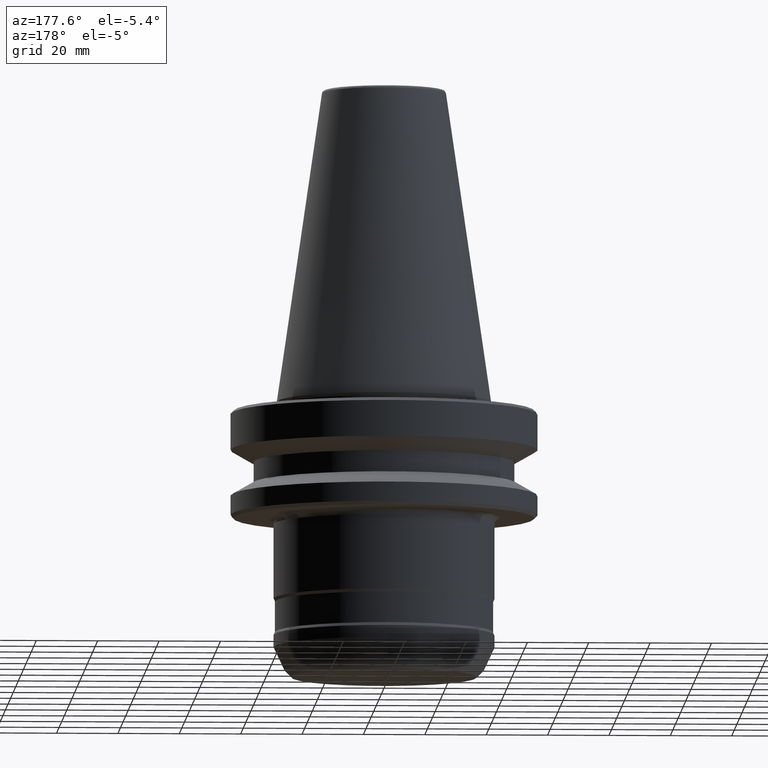
[diagram: clean part render]
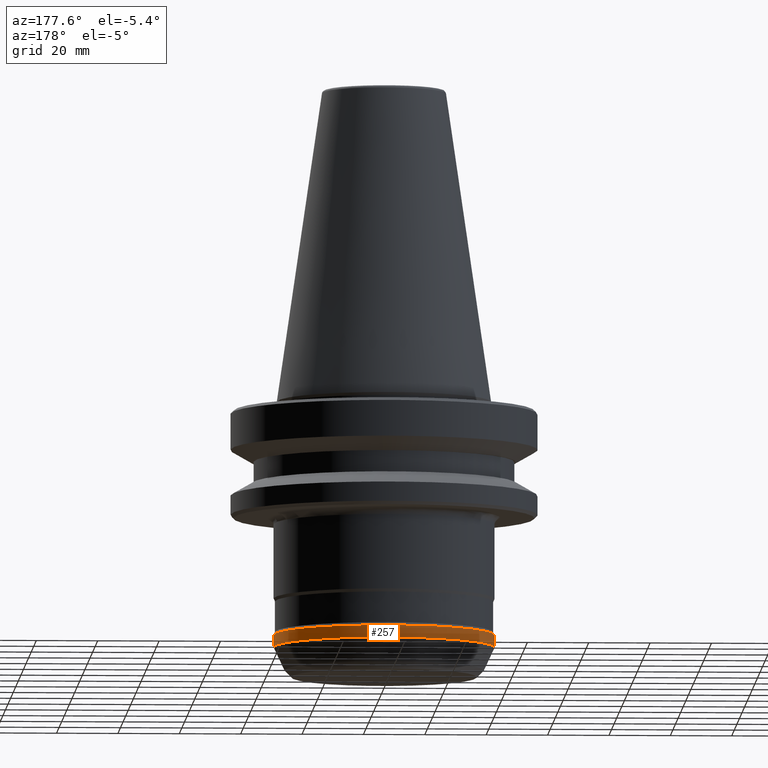
[diagram: same view with one face highlighted and labeled with its STEP entity id]
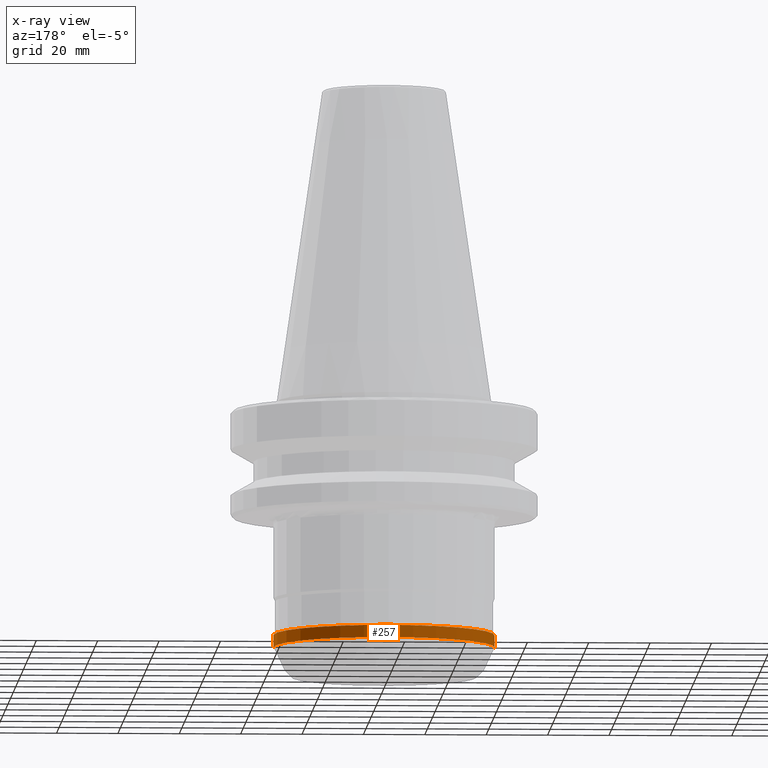
[diagram: x-ray of the same camera — body ghosted, the highlighted face saturated]
A machine part, auxiliary view. The second image highlights one B-rep face of the part: STEP entity #257.
The next image is the same camera in x-ray: the body ghosted, the highlighted face saturated — about 0% of this face is hidden behind the body in this view.
In plain terms, the highlighted cylindrical surface (partial cylindrical patch) has radius 36 mm, axis along (-0, -0, 1).
Its self-contained STEP definition (entity closure, byte-faithful):
#53 = CARTESIAN_POINT ( 'NONE',  ( 36.00000000322945200, 0.0000000000000000000, -80.24422577822989000 ) ) ;
#80 = ORIENTED_EDGE ( 'NONE', *, *, #957, .T. ) ;
#91 = DIRECTION ( 'NONE',  ( -0.0000000000000000000, -0.0000000000000000000, 1.000000000000000000 ) ) ;
#160 = VECTOR ( 'NONE', #294, 1000.000000000000000 ) ;
#185 = CARTESIAN_POINT ( 'NONE',  ( 36.00000000322944500, 0.0000000000000000000, 114.8991335799905900 ) ) ;
#188 = LINE ( 'NONE', #185, #160 ) ;
#191 = AXIS2_PLACEMENT_3D ( 'NONE', #379, #475, #853 ) ;
#220 = LINE ( 'NONE', #671, #959 ) ;
#227 = ORIENTED_EDGE ( 'NONE', *, *, #1127, .T. ) ;
#234 = AXIS2_PLACEMENT_3D ( 'NONE', #540, #1200, #637 ) ;
#257 = ADVANCED_FACE ( 'NONE', ( #1088 ), #714, .T. ) ;
#294 = DIRECTION ( 'NONE',  ( -0.0000000000000000000, -0.0000000000000000000, 1.000000000000000000 ) ) ;
#318 = DIRECTION ( 'NONE',  ( -0.0000000000000000000, -0.0000000000000000000, 1.000000000000000000 ) ) ;
#326 = EDGE_LOOP ( 'NONE', ( #80, #227, #641, #1131 ) ) ;
#377 = AXIS2_PLACEMENT_3D ( 'NONE', #1082, #318, #648 ) ;
#379 = CARTESIAN_POINT ( 'NONE',  ( 0.0000000000000000000, 0.0000000000000000000, -76.26674580061056500 ) ) ;
#421 = VERTEX_POINT ( 'NONE', #1128 ) ;
#475 = DIRECTION ( 'NONE',  ( -0.0000000000000000000, -0.0000000000000000000, 1.000000000000000000 ) ) ;
#540 = CARTESIAN_POINT ( 'NONE',  ( 0.0000000000000000000, 0.0000000000000000000, -80.24422577822989000 ) ) ;
#593 = CARTESIAN_POINT ( 'NONE',  ( -36.00000000322945200, 4.408728477325966300E-015, -80.24422577822989000 ) ) ;
#637 = DIRECTION ( 'NONE',  ( 1.000000000000000000, 0.0000000000000000000, 0.0000000000000000000 ) ) ;
#641 = ORIENTED_EDGE ( 'NONE', *, *, #730, .F. ) ;
#648 = DIRECTION ( 'NONE',  ( 1.000000000000000000, 0.0000000000000000000, 0.0000000000000000000 ) ) ;
#671 = CARTESIAN_POINT ( 'NONE',  ( -36.00000000322944500, 4.408728477325964700E-015, 114.8991335799905900 ) ) ;
#714 = CYLINDRICAL_SURFACE ( 'NONE', #377, 36.00000000322944500 ) ;
#726 = CIRCLE ( 'NONE', #234, 36.00000000322945200 ) ;
#730 = EDGE_CURVE ( 'NONE', #836, #421, #1182, .T. ) ;
#813 = CARTESIAN_POINT ( 'NONE',  ( 36.00000000322944500, 0.0000000000000000000, -76.26674580061056500 ) ) ;
#836 = VERTEX_POINT ( 'NONE', #813 ) ;
#853 = DIRECTION ( 'NONE',  ( 1.000000000000000000, 0.0000000000000000000, 0.0000000000000000000 ) ) ;
#957 = EDGE_CURVE ( 'NONE', #985, #1249, #726, .T. ) ;
#959 = VECTOR ( 'NONE', #91, 1000.000000000000000 ) ;
#985 = VERTEX_POINT ( 'NONE', #53 ) ;
#1082 = CARTESIAN_POINT ( 'NONE',  ( 0.0000000000000000000, 0.0000000000000000000, 114.8991335799905900 ) ) ;
#1088 = FACE_OUTER_BOUND ( 'NONE', #326, .T. ) ;
#1127 = EDGE_CURVE ( 'NONE', #1249, #421, #220, .T. ) ;
#1128 = CARTESIAN_POINT ( 'NONE',  ( -36.00000000322944500, 4.408728477325964700E-015, -76.26674580061056500 ) ) ;
#1131 = ORIENTED_EDGE ( 'NONE', *, *, #1186, .F. ) ;
#1182 = CIRCLE ( 'NONE', #191, 36.00000000322944500 ) ;
#1186 = EDGE_CURVE ( 'NONE', #985, #836, #188, .T. ) ;
#1200 = DIRECTION ( 'NONE',  ( -0.0000000000000000000, -0.0000000000000000000, 1.000000000000000000 ) ) ;
#1249 = VERTEX_POINT ( 'NONE', #593 ) ;